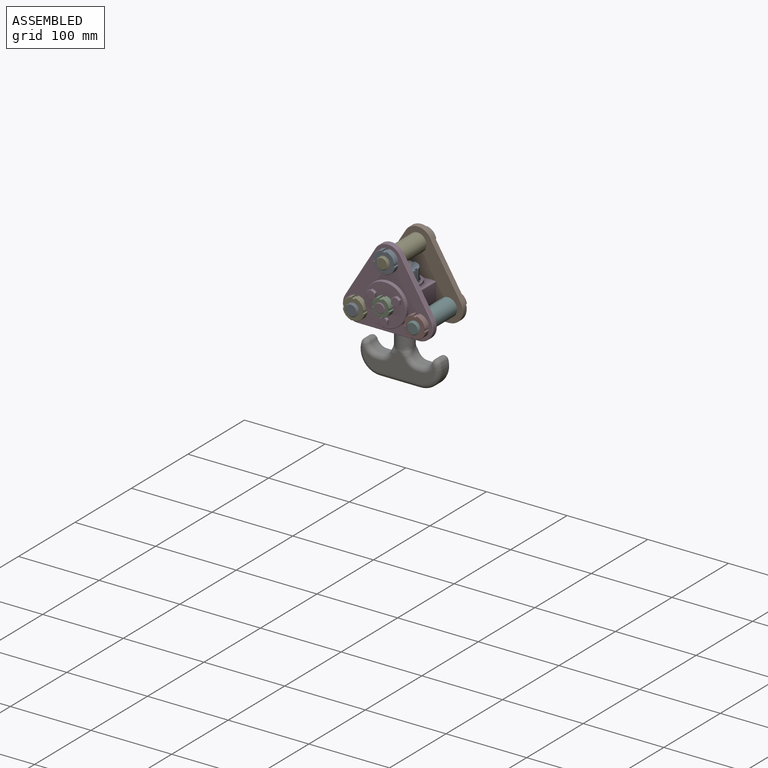
[diagram: assembled view]
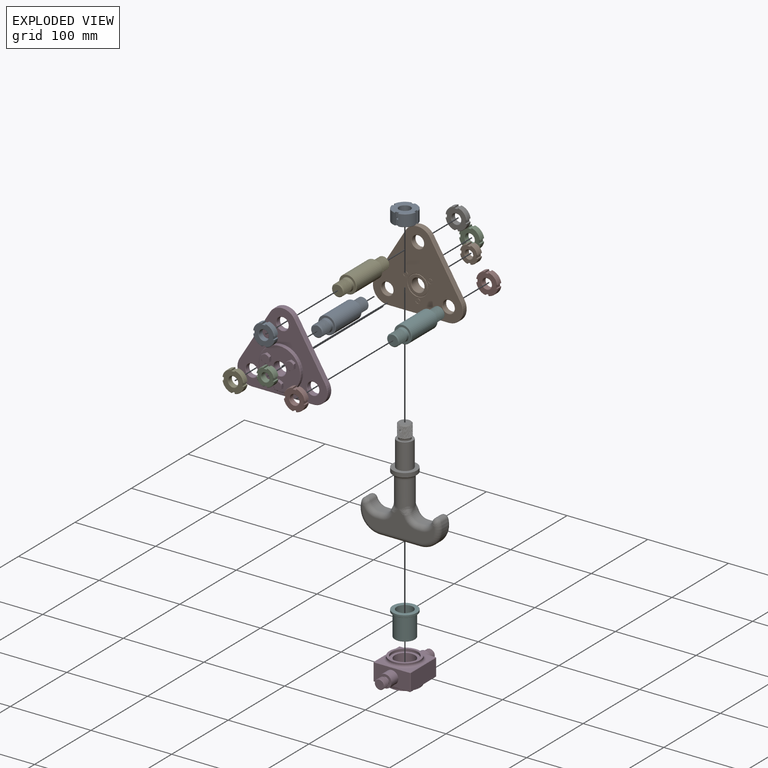
[diagram: exploded view]
GUIDED TOUR — MATED ASSEMBLY WITH SUBASSEMBLIES (Onshape document 79212cf4ececd10799b1dbc1, AutoMate assembly 79212cf4ececd10799b1dbc1_5e8a66c108269c9b4a3e70d1_1110fec8fb745d317670bb05_default)

This assembly has 25 component occurrences arranged in 17 top-level units: 15 individual components plus 2 subassemblies (S0, S1). The tour has two levels: first the top level, where each subassembly is treated as one rigid unit; then each subassembly is toured internally in its own section (nesting deeper than one subassembly level is flattened into its subassembly's section).

Components are labeled P0..P24 across the whole record; subassembly units are labeled S0..S1. A mate is a constraint between two units; its type names the relative motion it leaves free:
  FASTENED — locks the two components together rigidly (no relative motion),
  REVOLUTE — leaves rotation about the listed axis free (a hinge).
Axis/direction vectors are unit vectors and 'through' points are millimeter coordinates, both in the assembly's world frame.

TOP-LEVEL MATES (between units; each subassembly's internal mates are listed in its own section)
  1. FASTENED "Fastened 12": P5 <-> P0, direction (0.000, 0.000, 1.000) through (0.00, -30.00, 15.50) mm
  2. REVOLUTE "Revolute 1": S0 <-> P19, axis (0.000, -1.000, 0.000) through (0.00, -7.00, 0.00) mm
  3. REVOLUTE "Revolute 2": P19 <-> P5, axis (0.000, 0.000, 1.000) through (0.00, -30.00, 12.50) mm
  4. FASTENED "Fastened 8": P2 <-> S0, direction (0.000, -1.000, 0.000) through (-38.00, 0.00, -14.00) mm
  5. FASTENED "Fastened 1": P20 <-> S0, direction (0.000, 1.000, 0.000) through (0.00, -7.00, 48.39) mm
  6. FASTENED "Fastened 6": P6 <-> S0, direction (0.000, -1.000, 0.000) through (0.00, 0.00, 48.39) mm
  7. FASTENED "Fastened 3": S0 <-> P21, direction (0.000, -1.000, 0.000) through (38.00, -7.00, -14.00) mm
  8. FASTENED "Fastened 5": P20 <-> S1, direction (0.000, -1.000, 0.000) through (0.00, -53.00, 48.39) mm
  9. FASTENED "Fastened 7": P7 <-> S0, direction (0.000, -1.000, 0.000) through (38.00, 0.00, -14.00) mm
  10. FASTENED "Fastened 14": P18 <-> P19, direction (0.000, 1.000, 0.000) through (0.00, -65.00, 0.00) mm
  11. FASTENED "Fastened 11": P4 <-> S1, direction (0.000, 1.000, 0.000) through (-38.00, -60.00, -14.00) mm
  12. FASTENED "Fastened 10": P23 <-> S1, direction (0.000, 1.000, 0.000) through (38.00, -60.00, -14.00) mm
  13. FASTENED "Fastened 4": P22 <-> P5, direction (0.000, 0.000, 1.000) through (0.00, -30.00, 15.50) mm
  14. FASTENED "Fastened 13": P19 <-> P16, direction (0.000, 1.000, 0.000) through (0.00, 5.00, 0.00) mm
  15. FASTENED "Fastened 9": P10 <-> S1, direction (0.000, 1.000, 0.000) through (0.00, -60.00, 48.39) mm
  16. FASTENED "Fastened 2": P24 <-> S0, direction (0.000, 1.000, 0.000) through (-38.00, -7.00, -14.00) mm

TOP-LEVEL ASSEMBLY ORDER
  1. S0 — the base component [order heuristic]
  2. P2 — core [order heuristic]
  3. P7 — core [order heuristic]
  4. P19 — core [order heuristic]
  5. P20 — core [order heuristic]
  6. P21 — core [order heuristic]
  7. P24 — core [order heuristic]
  8. S1 — core [order heuristic]
  9. P5 — core [order heuristic]
  10. P16 — core [order heuristic]
  11. P18 — core [order heuristic]
  12. P22 — core [order heuristic]
  13. P4 — core [order heuristic]
  14. P6 [order verified]
  15. P0 — core [order heuristic]
  16. P23 — core [order heuristic]
  17. P10 — core [order heuristic]
Order-tag legend:
  [order verified] — this step's position reverses a verified removal order: the component was checked to insert without passing through the ones already placed.
  [order heuristic] — the first 16 components form the assembly's core: parts whose collision-free extraction could not be verified, listed in mate-graph order.

Of the 25 component occurrences, 5 carry the full construction recipe — the FeatureScript program that regenerates the part's solid from scratch; the rest are supplied as boundary geometry only. Each toured unit is shown spotlighted twice — assembled, then exploded with a leader line back to its socket (green = recipe-attached component, orange = geometry-only, blue = subassembly unit; the rest desaturated gray).
NOTE — this tour is split across 2 documents so each fits a 32k-token context. This is document 1: the component sections continue in the remaining 1 document, each repeating the header above.
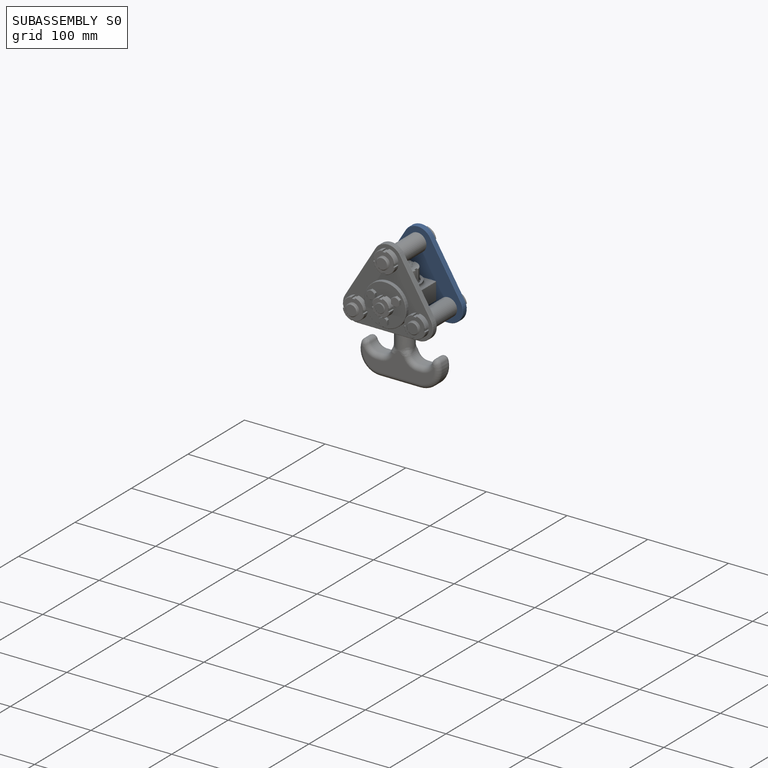
[diagram: subassembly S0 — assembled]
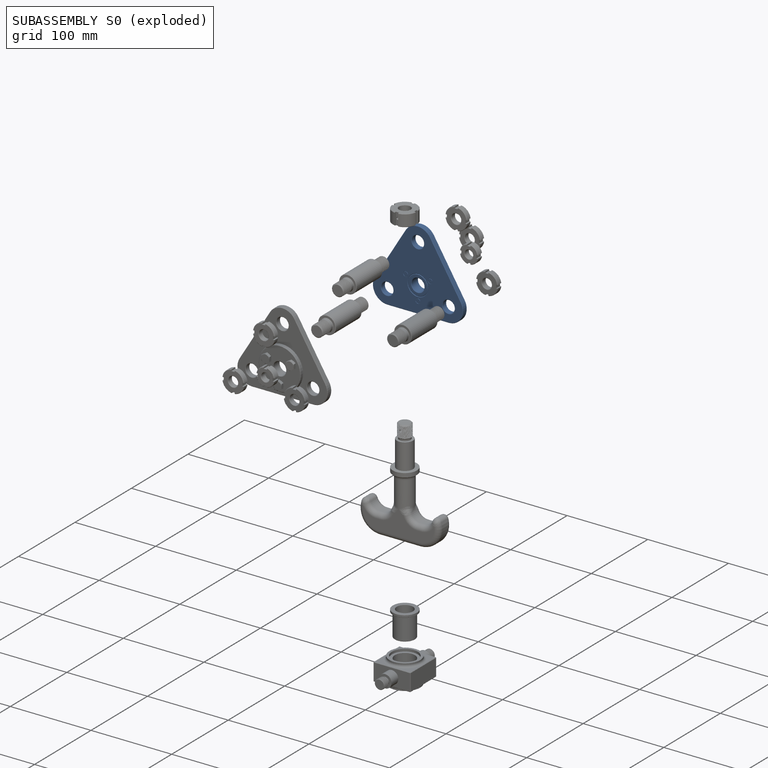
[diagram: subassembly S0 — exploded]
SUBASSEMBLY S0 — 5 components (P1, P8, P12, P15, P17), of which 2 recipe-attached; toured below.
Held by: REVOLUTE mate "Revolute 1" to P19; FASTENED mate "Fastened 8" to P2; FASTENED mate "Fastened 1" to P20; FASTENED mate "Fastened 6" to P6; FASTENED mate "Fastened 3" to P21; FASTENED mate "Fastened 7" to P7; FASTENED mate "Fastened 2" to P24.
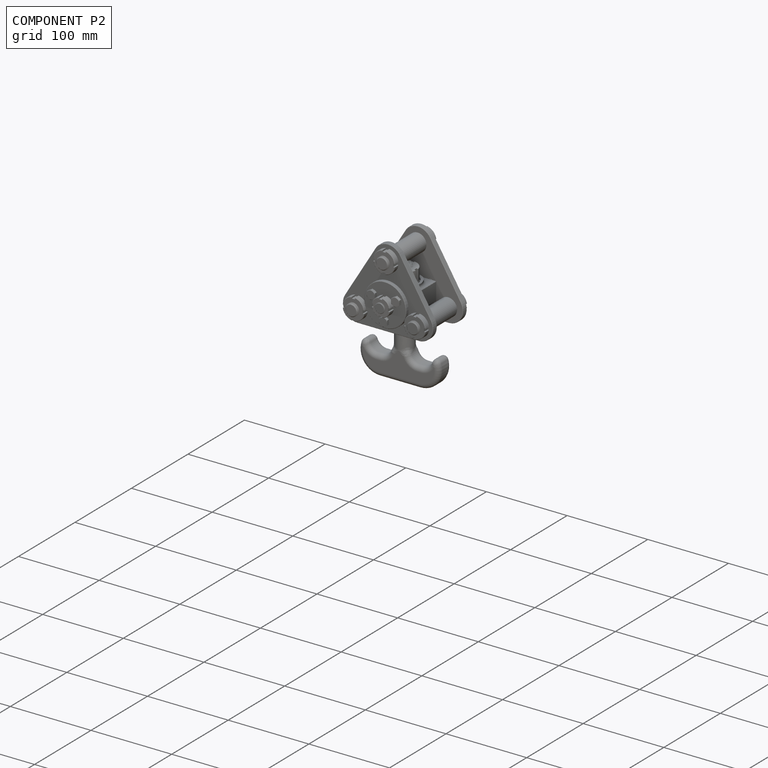
[diagram: component P2 — assembled]
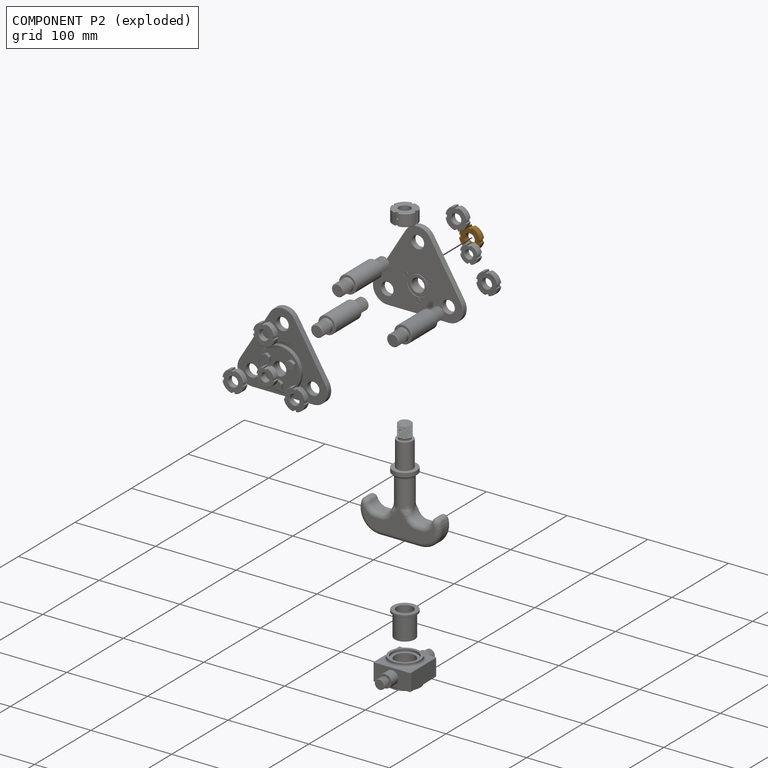
[diagram: component P2 — exploded]
COMPONENT P2 — geometry summary (no construction recipe available for this part):
  bounding box: 26.7 x 26.7 x 7.0 mm
  B-rep topology: 1 solid, 29 faces, 158 edges
  volume: 2958 mm^3 (59% of its bounding box)
  symmetry: 2-fold rotationally symmetric about the x axis; 2-fold rotationally symmetric about the y axis; 4-fold rotationally symmetric about the z axis; mirror-symmetric across its x mid-plane, y mid-plane, z mid-plane
Held by: FASTENED mate "Fastened 8" to P1.
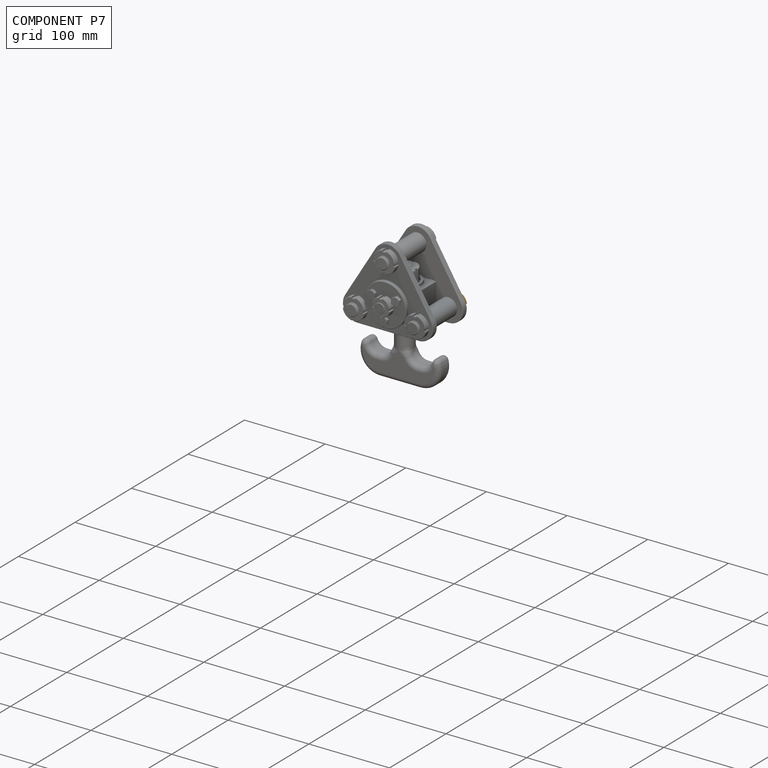
[diagram: component P7 — assembled]
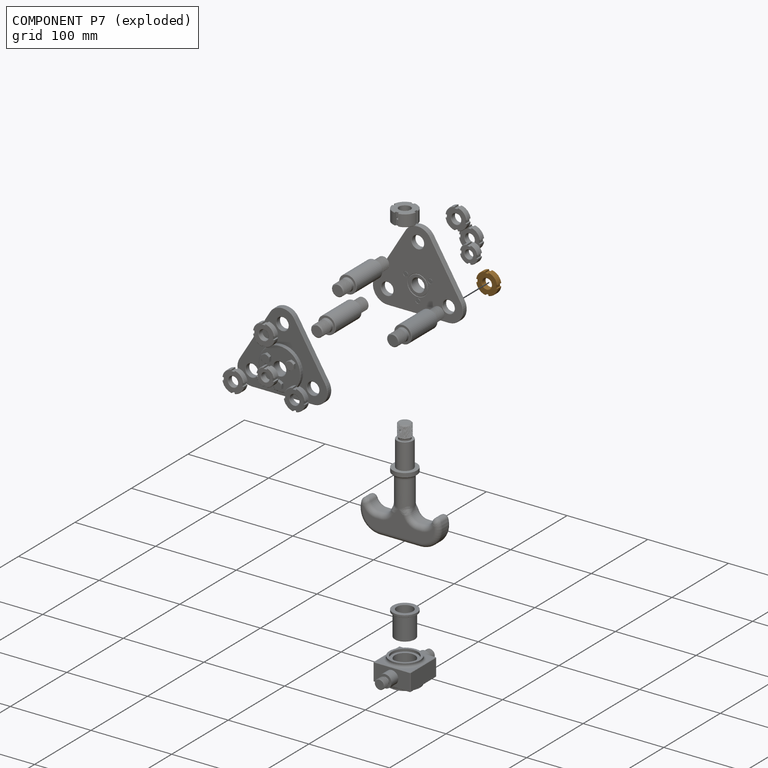
[diagram: component P7 — exploded]
COMPONENT P7 — geometry summary (no construction recipe available for this part):
  bounding box: 26.7 x 26.7 x 7.0 mm
  B-rep topology: 1 solid, 29 faces, 158 edges
  volume: 2958 mm^3 (59% of its bounding box)
  symmetry: 2-fold rotationally symmetric about the x axis; 2-fold rotationally symmetric about the y axis; 4-fold rotationally symmetric about the z axis; mirror-symmetric across its x mid-plane, y mid-plane, z mid-plane
Held by: FASTENED mate "Fastened 7" to P1.
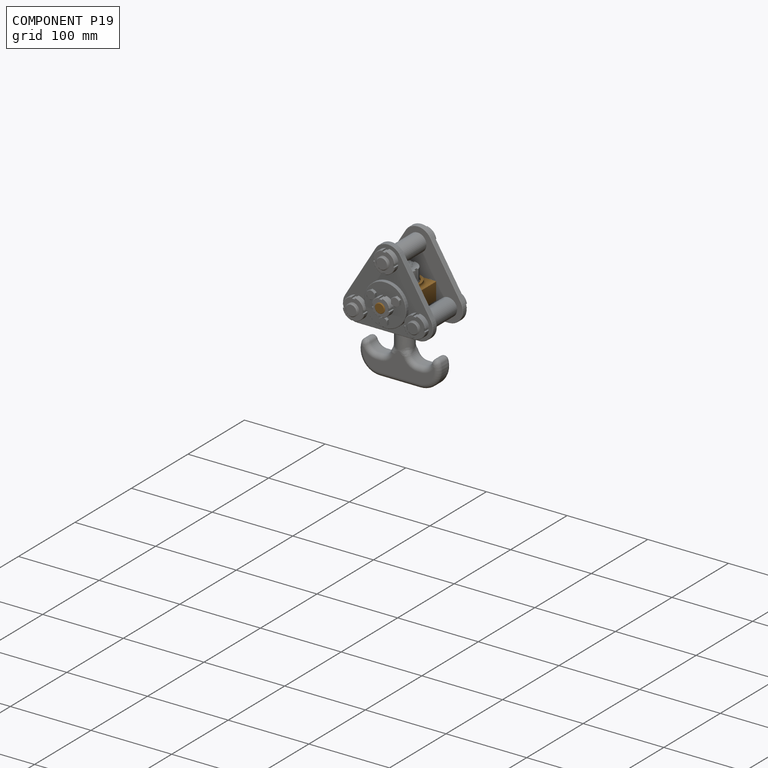
[diagram: component P19 — assembled]
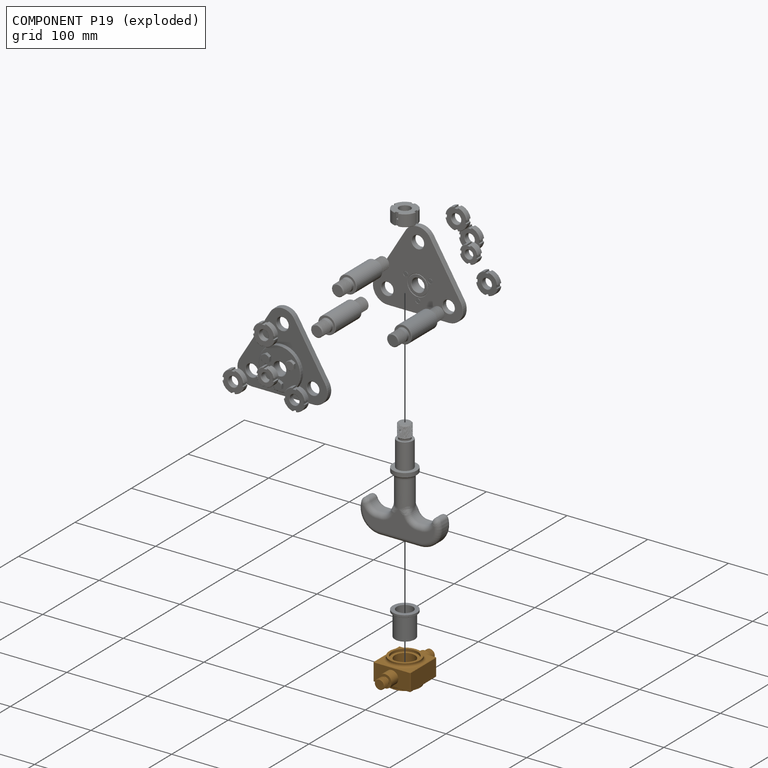
[diagram: component P19 — exploded]
COMPONENT P19 — geometry summary (no construction recipe available for this part):
  bounding box: 90.3 x 52.5 x 31.9 mm
  B-rep topology: 1 solid, 61 faces, 228 edges
  volume: 47735 mm^3 (32% of its bounding box)
  symmetry: 2-fold rotationally symmetric about the z axis; mirror-symmetric across its x mid-plane, y mid-plane
Held by: REVOLUTE mate "Revolute 1" to P1; REVOLUTE mate "Revolute 2" to P5; FASTENED mate "Fastened 14" to P18; FASTENED mate "Fastened 13" to P16.
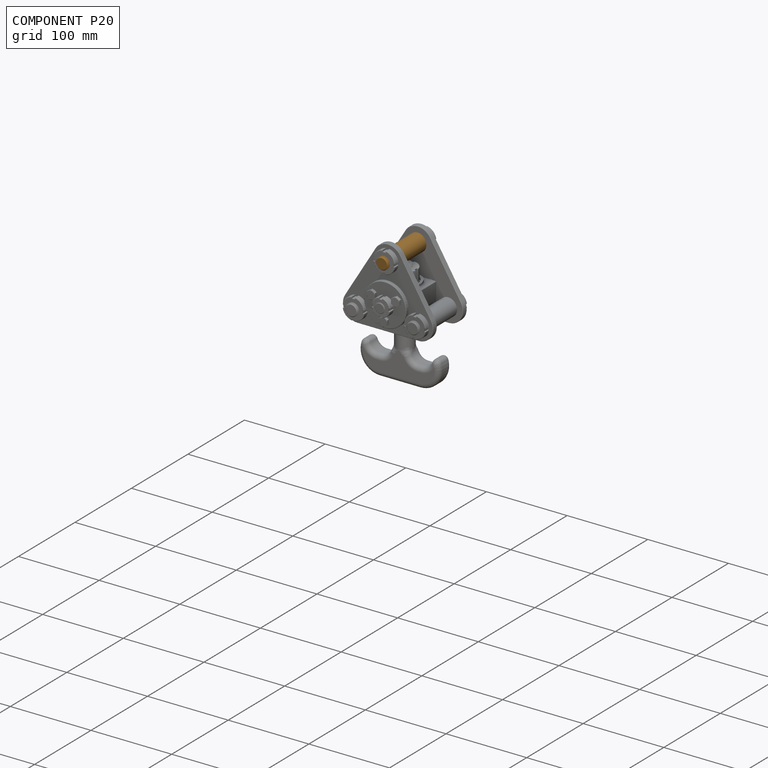
[diagram: component P20 — assembled]
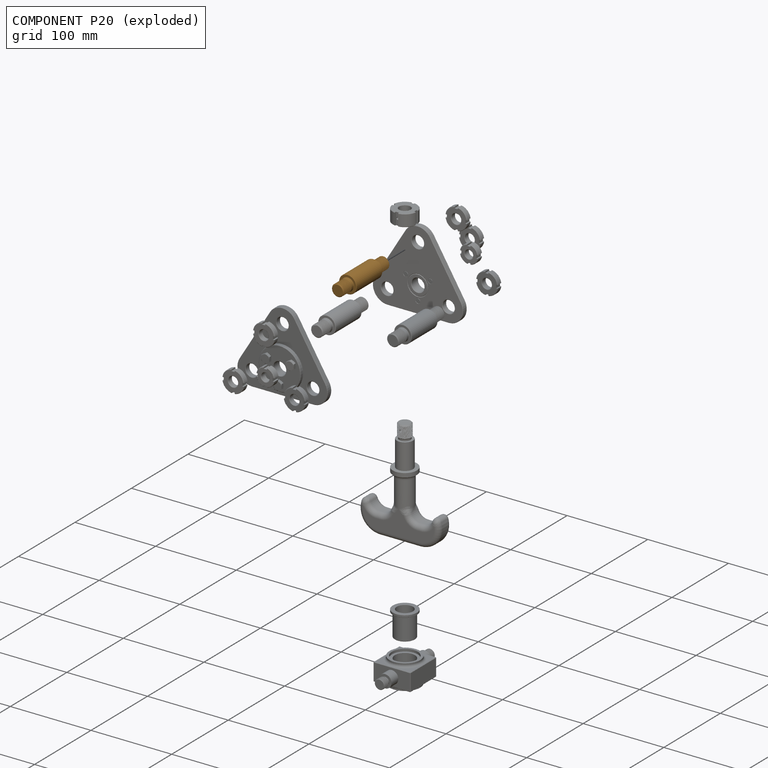
[diagram: component P20 — exploded]
COMPONENT P20 — geometry summary (no construction recipe available for this part):
  bounding box: 82.3 x 22.3 x 22.3 mm
  B-rep topology: 1 solid, 55 faces, 274 edges
  volume: 23421 mm^3 (57% of its bounding box)
  symmetry: 2-fold rotationally symmetric about the x axis; revolution-symmetric about the y axis through its bounding-box center; 2-fold rotationally symmetric about the z axis; mirror-symmetric across its x mid-plane, y mid-plane, z mid-plane
Held by: FASTENED mate "Fastened 1" to P1; FASTENED mate "Fastened 5" to P3.
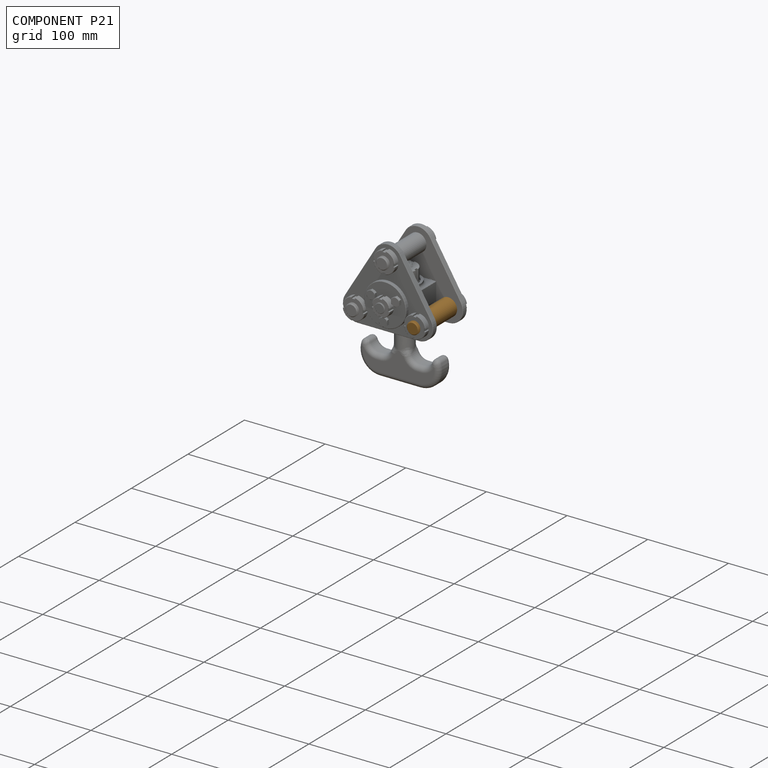
[diagram: component P21 — assembled]
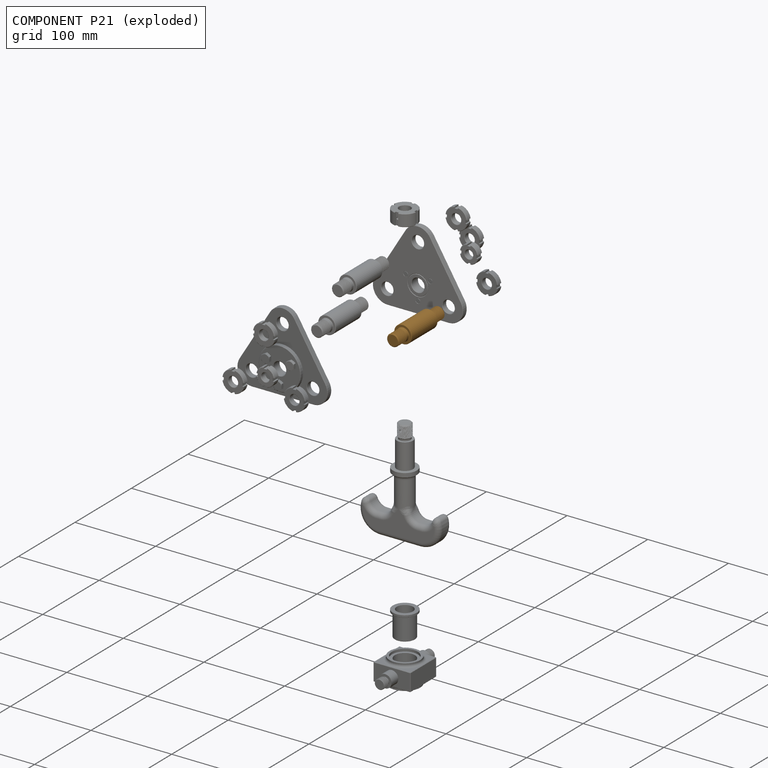
[diagram: component P21 — exploded]
COMPONENT P21 — geometry summary (no construction recipe available for this part):
  bounding box: 82.3 x 22.3 x 22.3 mm
  B-rep topology: 1 solid, 55 faces, 274 edges
  volume: 23421 mm^3 (57% of its bounding box)
  symmetry: 2-fold rotationally symmetric about the x axis; revolution-symmetric about the y axis through its bounding-box center; 2-fold rotationally symmetric about the z axis; mirror-symmetric across its x mid-plane, y mid-plane, z mid-plane
Held by: FASTENED mate "Fastened 3" to P1.
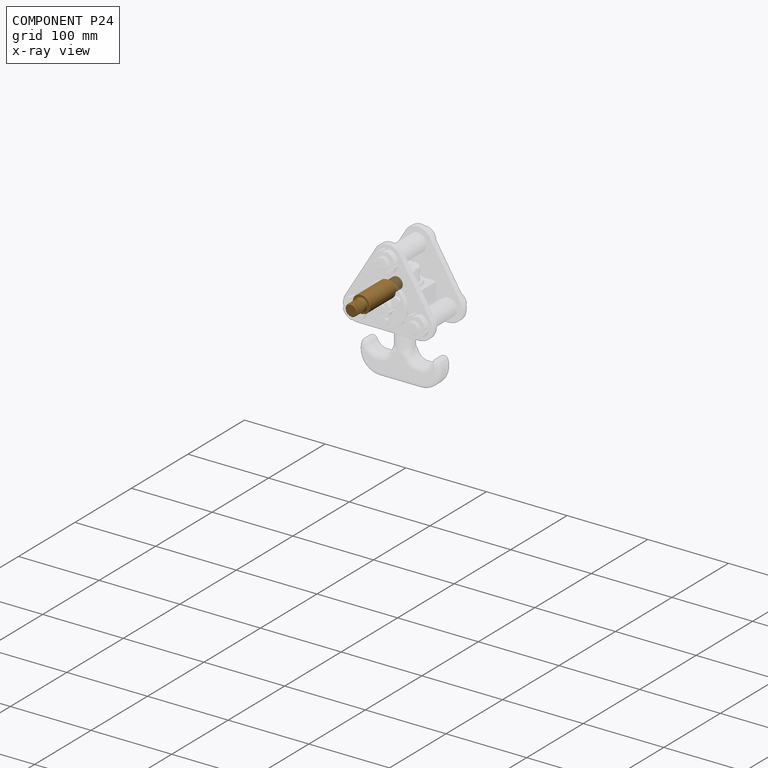
[diagram: component P24 — x-ray view]
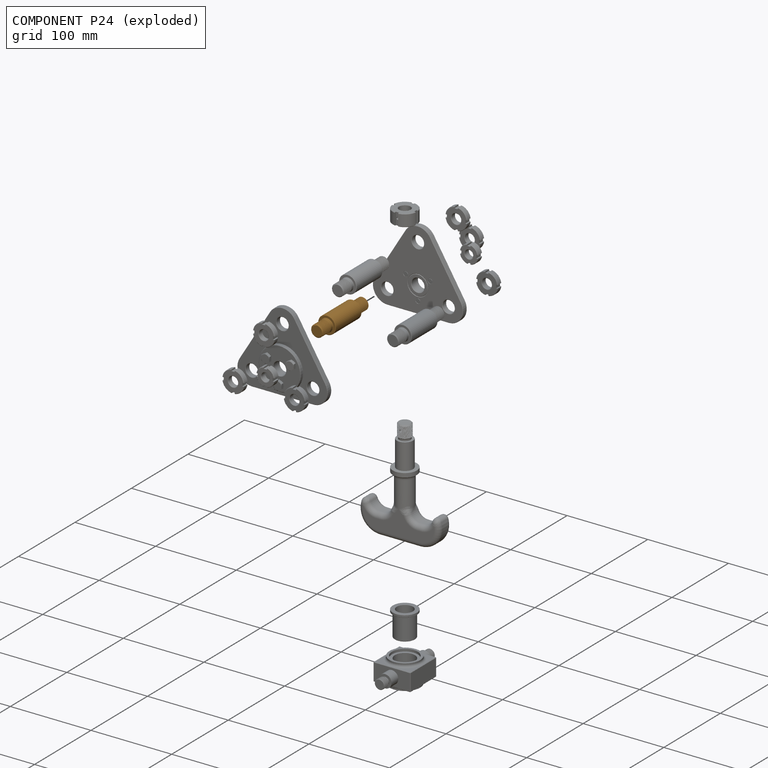
[diagram: component P24 — exploded]
COMPONENT P24 — geometry summary (no construction recipe available for this part):
  bounding box: 82.3 x 22.3 x 22.3 mm
  B-rep topology: 1 solid, 55 faces, 274 edges
  volume: 23421 mm^3 (57% of its bounding box)
  symmetry: 2-fold rotationally symmetric about the x axis; revolution-symmetric about the y axis through its bounding-box center; 2-fold rotationally symmetric about the z axis; mirror-symmetric across its x mid-plane, y mid-plane, z mid-plane
Held by: FASTENED mate "Fastened 2" to P1.
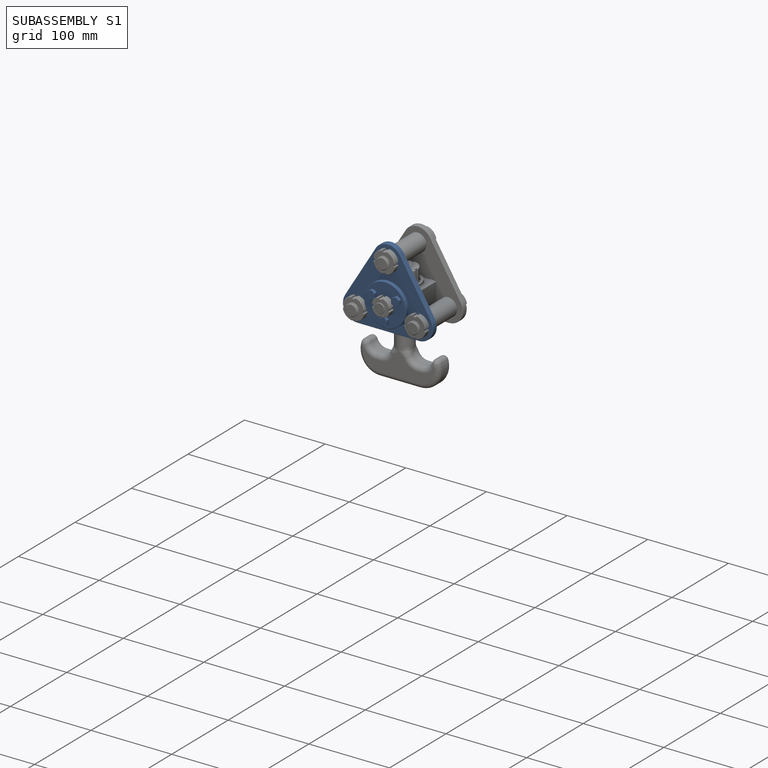
[diagram: subassembly S1 — assembled]
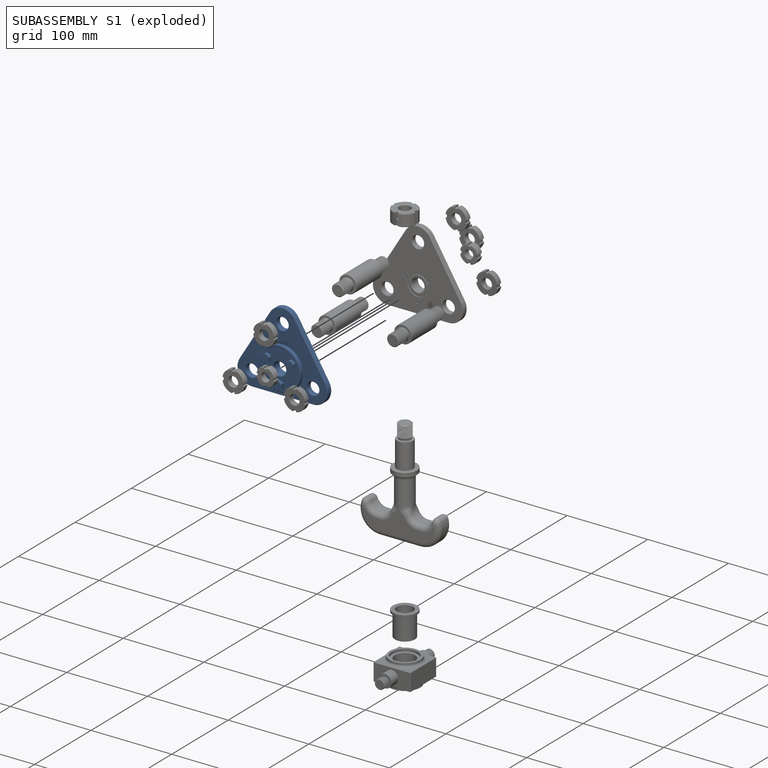
[diagram: subassembly S1 — exploded]
SUBASSEMBLY S1 — 5 components (P3, P9, P11, P13, P14), of which 2 recipe-attached; toured below.
Held by: FASTENED mate "Fastened 5" to P20; FASTENED mate "Fastened 11" to P4; FASTENED mate "Fastened 10" to P23; FASTENED mate "Fastened 9" to P10.
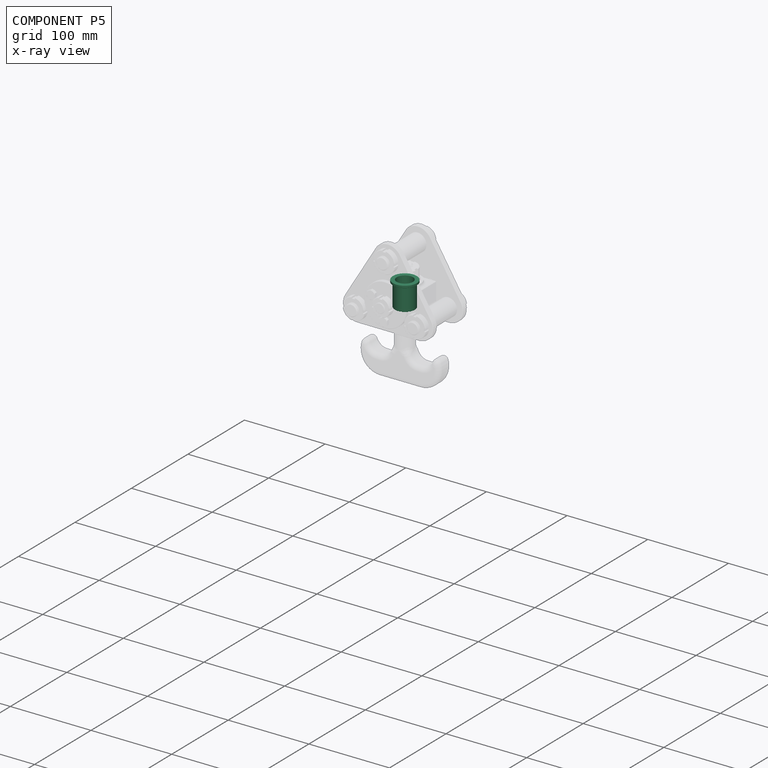
[diagram: component P5 — x-ray view]
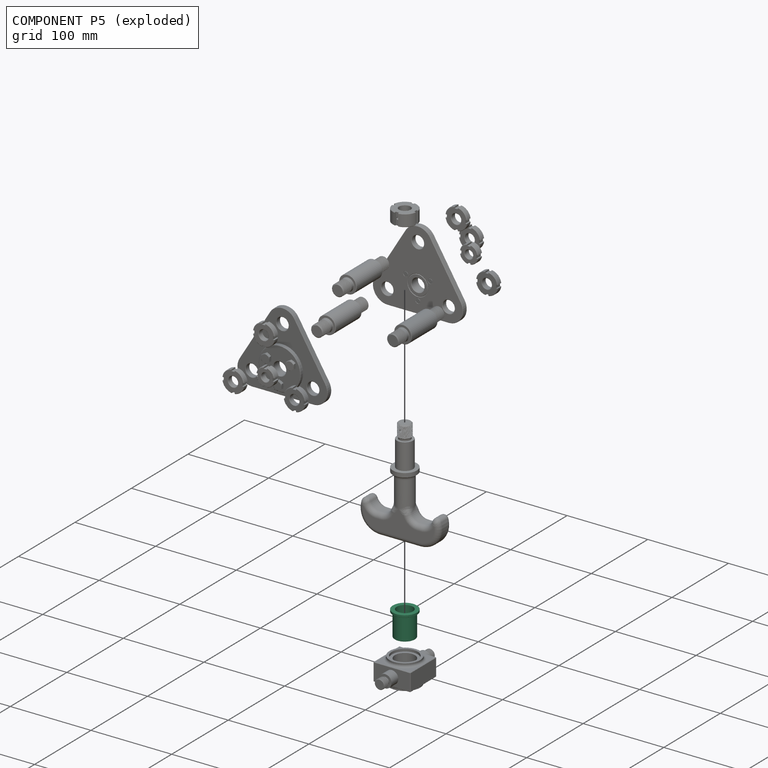
[diagram: component P5 — exploded]
COMPONENT P5 — recipe-attached (CADFS 00941910, mesh-verified: the recipe's output STEP matches this component's geometry to below the mesh-comparison resolution (tessellation chordal tolerance ~0.0788 mm)).
Held by: FASTENED mate "Fastened 12" to P0; REVOLUTE mate "Revolute 2" to P19; FASTENED mate "Fastened 4" to P22.
Construction recipe (FeatureScript — the CAD program that rebuilds this solid; sketch coordinates are in the units given by the * unit suffixes, e.g. mm):

FeatureScript 1977;
import(path : "onshape/std/geometry.fs", version : "1977.0");
import(path : "onshape/std/common.fs", version : "1977.0");
const mm = millimeter;
const VERTEX = EntityType.VERTEX;
const EDGE = EntityType.EDGE;
const FACE = EntityType.FACE;
const BODY = EntityType.BODY;
function v(x, y){return vector(x, y);}
function OD(order){return orderDisambiguation(order);}
function OSD(set){return originalSetDisambiguation(set);}
function TD(topology){return topologyDisambiguation(topology);}
function TDD(query){return trueDependencyDisambiguation(query);}
function sQuery(a, b, c) {return sketchEntityQuery(a, b, c);}

annotation { "Feature Type Name" : "Feature", "Feature Type Description" : "" }
export const myFeature = defineFeature(function(context is Context, id is Id, definition is map)
    precondition{}
    {
        {
            var Q0;
            Q0=qCreatedBy(makeId("Front.planeOp"),FACE);
            var sketch = newSketch(context, id + "F0", { "sketchPlane" : qUnion([Q0])});
            skCircle(sketch, "E0", {"center": v(0, 0) * mm, "radius": 15 * mm});
            skCircle(sketch, "E1", {"center": v(0, 0) * mm, "radius": 12.5 * mm});
            skCircle(sketch, "E2", {"center": v(0, 0) * mm, "radius": 10 * mm});
            skSolve(sketch);
        }
        {
            var Q0;
            Q0=makeQuery(id+"F0.imprint","IMPRINT",FACE,{"disambiguationData":[TD([[makeQuery(id+"F0.imprint","IMPRINT",EDGE,{"derivedFrom":sQuery(id+"F0.wireOp",EDGE,"E0")}),1.0]])]});
            extrude(context, id + "F1", {"entities" : qUnion([Q0]), "depth" : 3 * mm, "offsetDistance" : 25 * mm});
        }
        {
            var Q0;
            Q0=makeQuery(id+"F0.imprint","IMPRINT",FACE,{"disambiguationData":[TD([[makeQuery(id+"F0.imprint","IMPRINT",EDGE,{"derivedFrom":sQuery(id+"F0.wireOp",EDGE,"E1")}),1.0]])]});
            extrude(context, id + "F2", {"entities" : qUnion([Q0]), "operationType" : NewBodyOperationType.ADD, "depth" : 31 * mm, "offsetDistance" : 25 * mm});
        }
        {
            var Q0;
            Q0=makeQuery(id+"F2.opExtrude","CAP_FACE",FACE,{"disambiguationData":[OSD([sQuery(id+"F0.wireOp",EDGE,"E1"),sQuery(id+"F0.wireOp",EDGE,"E2")])],"isStart":false});
            var Q1;
            {var subQ0=sQuery(id+"F0.wireOp",EDGE,"E1");Q1=makeQuery(id+"F2.boolean.opBoolean","MERGE",FACE,{"derivedFrom":[makeQuery(id+"F1.opExtrude","CAP_FACE",FACE,{"disambiguationData":[OSD([sQuery(id+"F0.wireOp",EDGE,"E0"),subQ0])],"isStart":true}),makeQuery(id+"F2.opExtrude","CAP_FACE",FACE,{"disambiguationData":[OSD([subQ0,sQuery(id+"F0.wireOp",EDGE,"E2")])],"isStart":true})]});}
            var Q2;
            Q2=makeQuery(id+"F1.opExtrude","CAP_EDGE",EDGE,{"disambiguationData":[OSD([sQuery(id+"F0.wireOp",EDGE,"E0")])],"isStart":false});
            chamfer(context, id + "F3", {"entities" : qUnion([Q0, Q1, Q2]), "width" : 0.25 * mm, "tangentPropagation" : true});
        }
    });
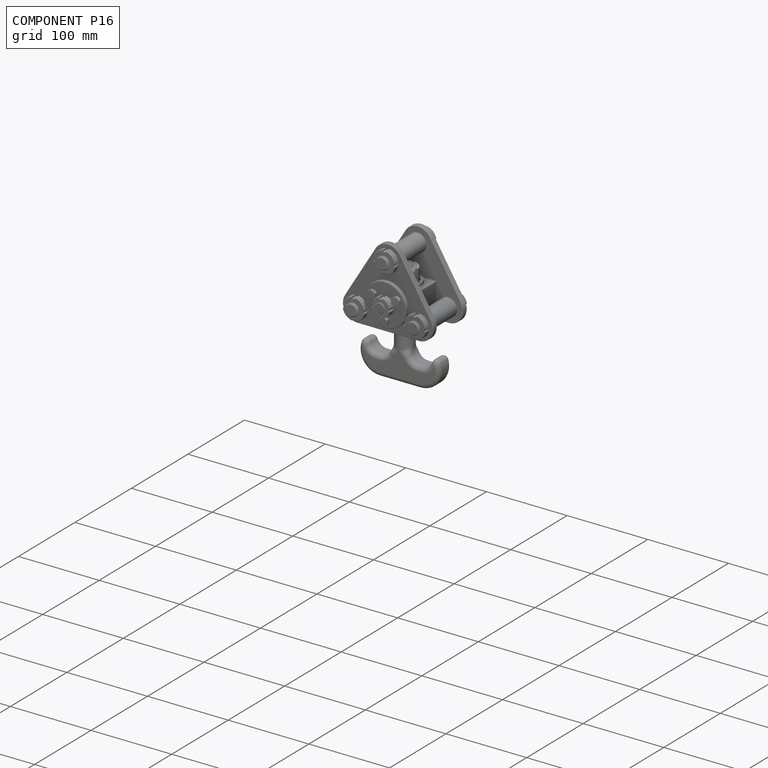
[diagram: component P16 — assembled]
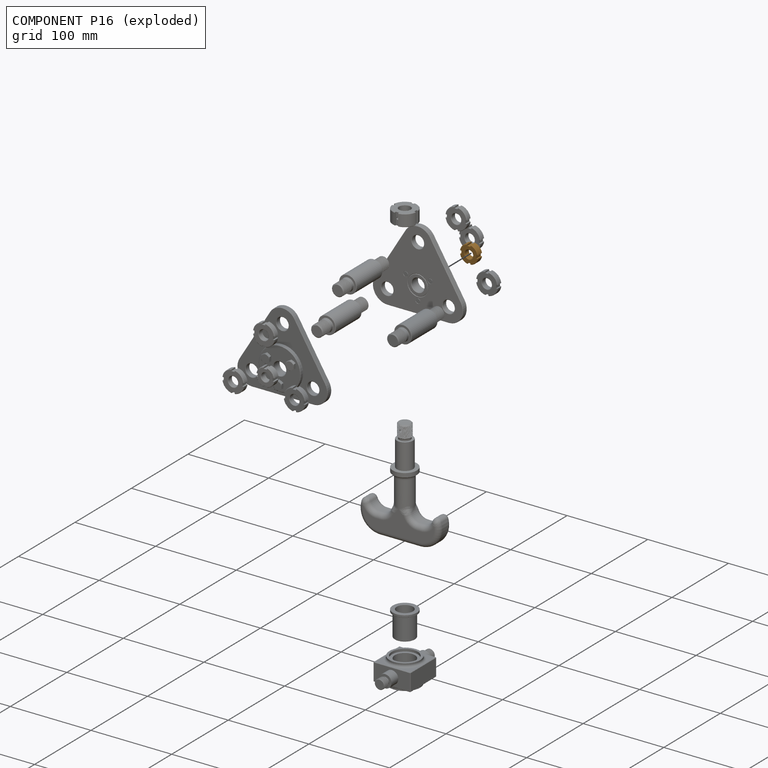
[diagram: component P16 — exploded]
COMPONENT P16 — geometry summary (no construction recipe available for this part):
  bounding box: 22.1 x 22.1 x 8.0 mm
  B-rep topology: 1 solid, 29 faces, 158 edges
  volume: 2244 mm^3 (57% of its bounding box)
  symmetry: 2-fold rotationally symmetric about the x axis; 2-fold rotationally symmetric about the y axis; 4-fold rotationally symmetric about the z axis; mirror-symmetric across its x mid-plane, y mid-plane, z mid-plane
Held by: FASTENED mate "Fastened 13" to P19.
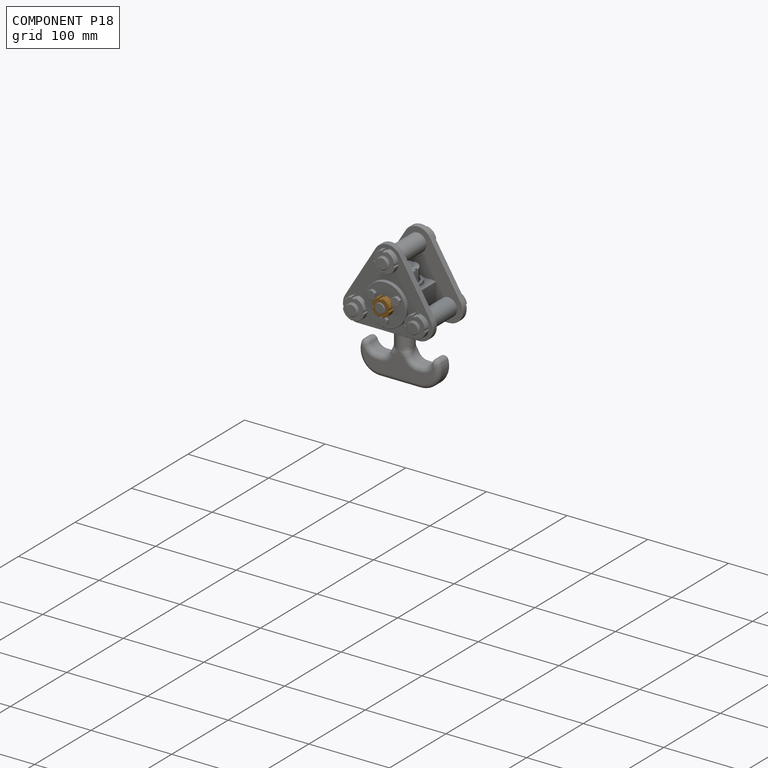
[diagram: component P18 — assembled]
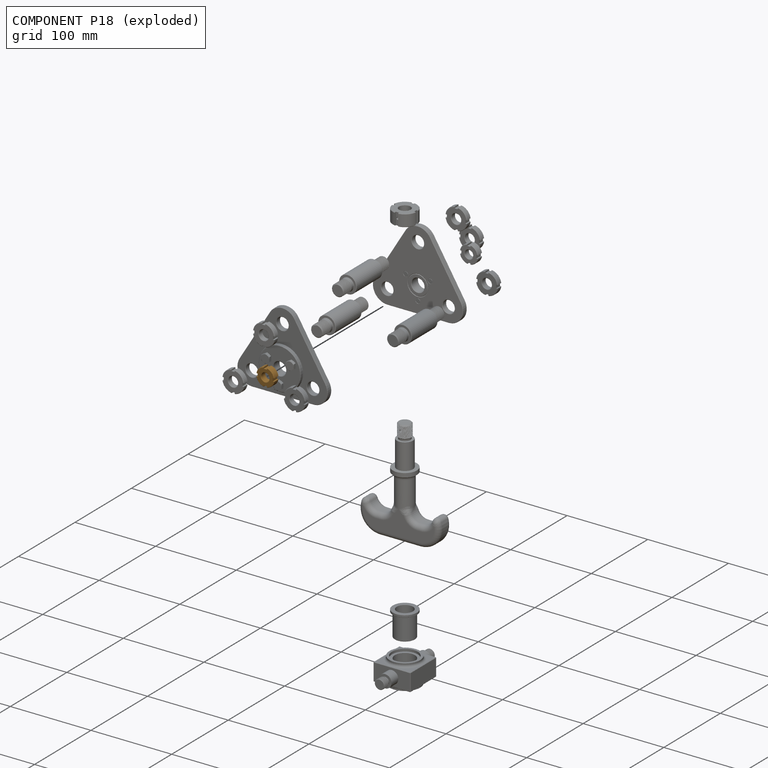
[diagram: component P18 — exploded]
COMPONENT P18 — geometry summary (no construction recipe available for this part):
  bounding box: 22.1 x 22.1 x 8.0 mm
  B-rep topology: 1 solid, 29 faces, 158 edges
  volume: 2244 mm^3 (57% of its bounding box)
  symmetry: 2-fold rotationally symmetric about the x axis; 2-fold rotationally symmetric about the y axis; 4-fold rotationally symmetric about the z axis; mirror-symmetric across its x mid-plane, y mid-plane, z mid-plane
Held by: FASTENED mate "Fastened 14" to P19.
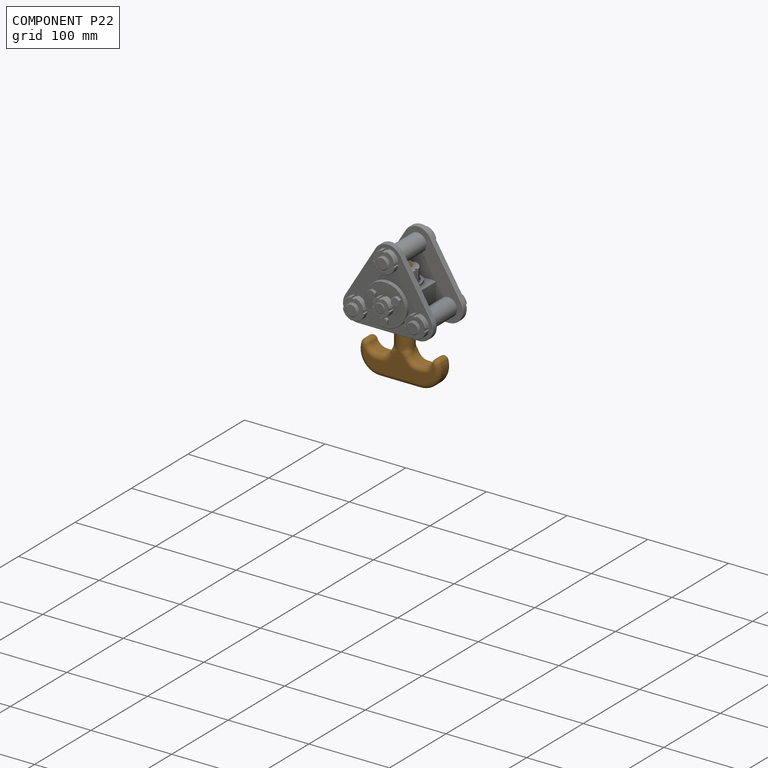
[diagram: component P22 — assembled]
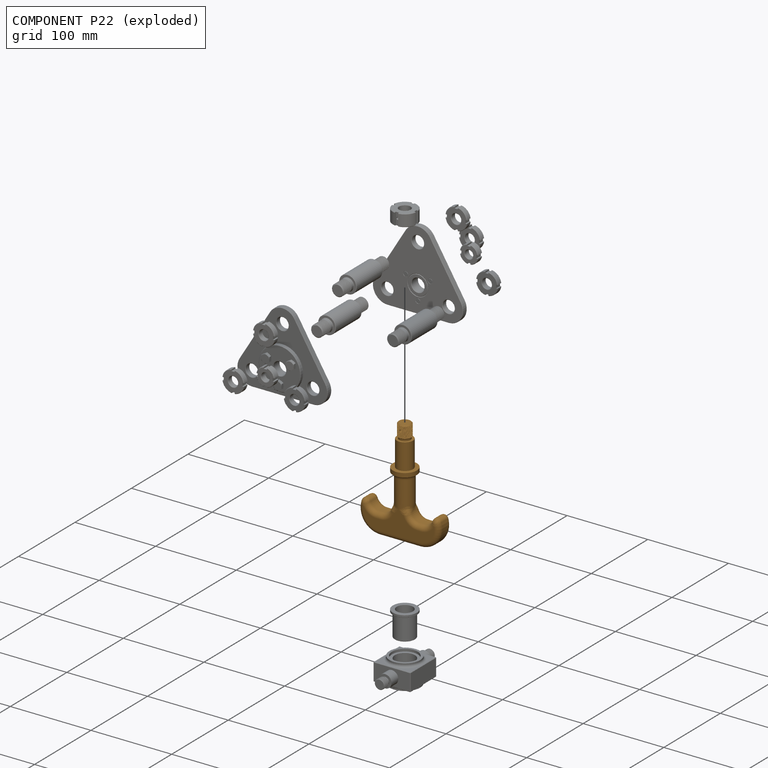
[diagram: component P22 — exploded]
COMPONENT P22 — geometry summary (no construction recipe available for this part):
  bounding box: 132.4 x 104.4 x 34.9 mm
  B-rep topology: 1 solid, 98 faces, 482 edges
  volume: 89659 mm^3 (19% of its bounding box)
  symmetry: 2-fold rotationally symmetric about the z axis; mirror-symmetric across its x mid-plane, y mid-plane
Held by: FASTENED mate "Fastened 4" to P5.
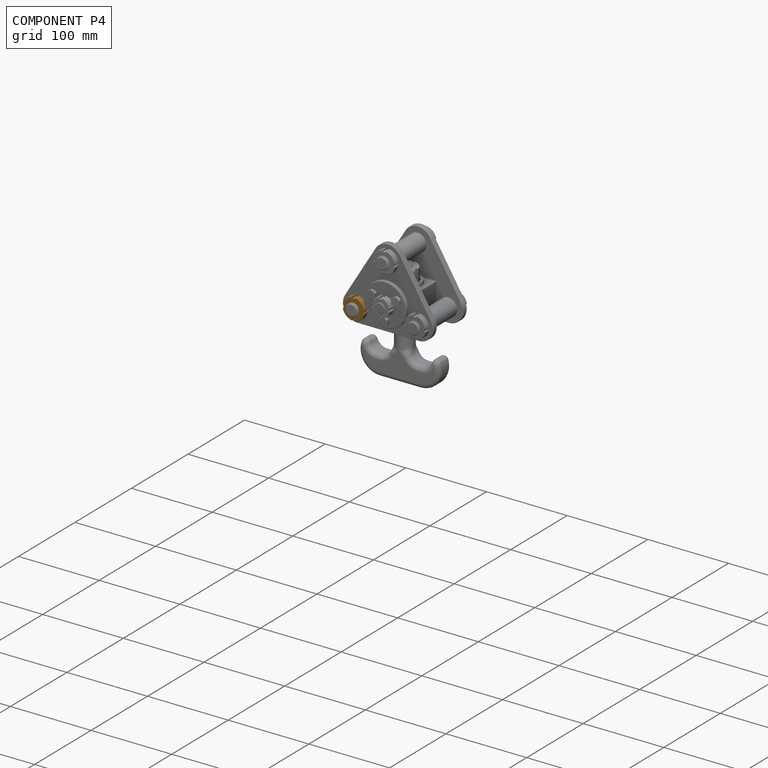
[diagram: component P4 — assembled]
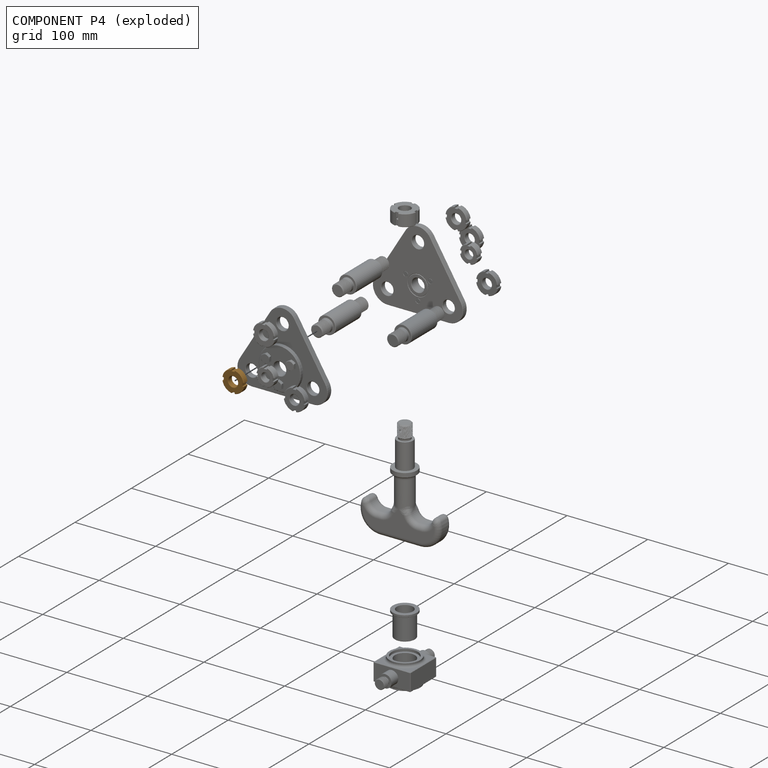
[diagram: component P4 — exploded]
COMPONENT P4 — geometry summary (no construction recipe available for this part):
  bounding box: 26.7 x 26.7 x 7.0 mm
  B-rep topology: 1 solid, 29 faces, 158 edges
  volume: 2958 mm^3 (59% of its bounding box)
  symmetry: 2-fold rotationally symmetric about the x axis; 2-fold rotationally symmetric about the y axis; 4-fold rotationally symmetric about the z axis; mirror-symmetric across its x mid-plane, y mid-plane, z mid-plane
Held by: FASTENED mate "Fastened 11" to P3.
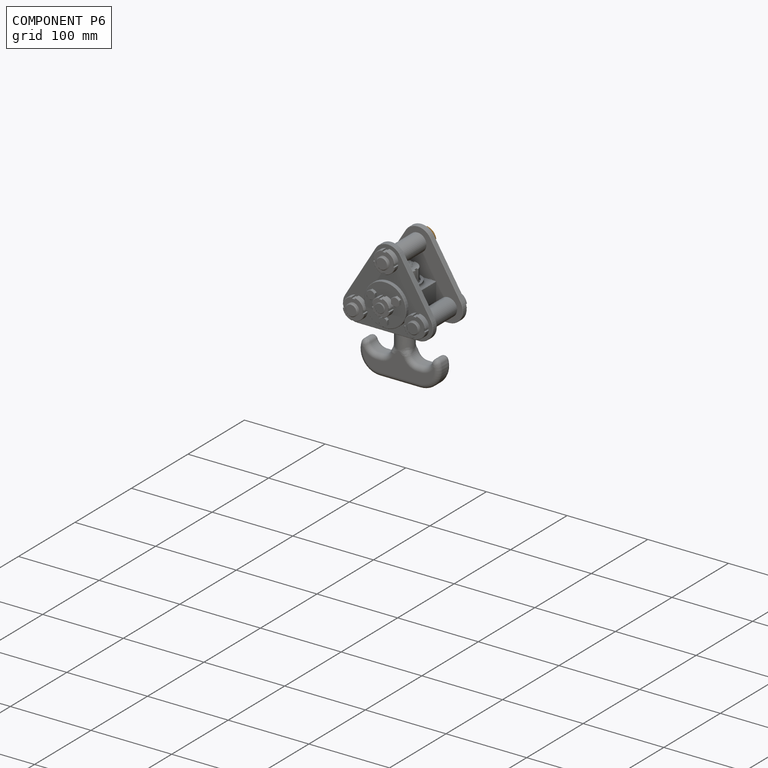
[diagram: component P6 — assembled]
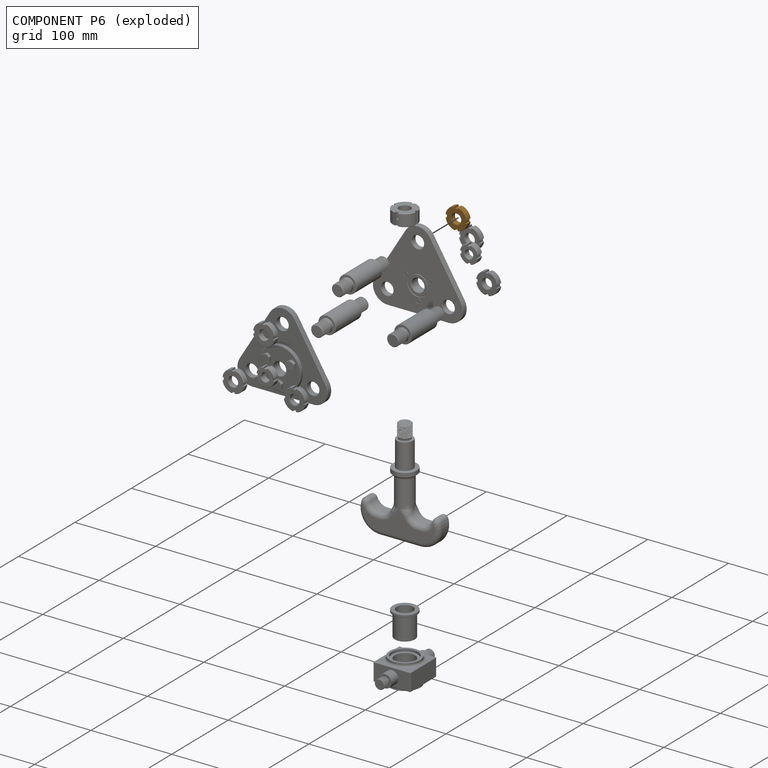
[diagram: component P6 — exploded]
COMPONENT P6 — geometry summary (no construction recipe available for this part):
  bounding box: 26.7 x 26.7 x 7.0 mm
  B-rep topology: 1 solid, 29 faces, 158 edges
  volume: 2958 mm^3 (59% of its bounding box)
  symmetry: 2-fold rotationally symmetric about the x axis; 2-fold rotationally symmetric about the y axis; 4-fold rotationally symmetric about the z axis; mirror-symmetric across its x mid-plane, y mid-plane, z mid-plane
Held by: FASTENED mate "Fastened 6" to P1.
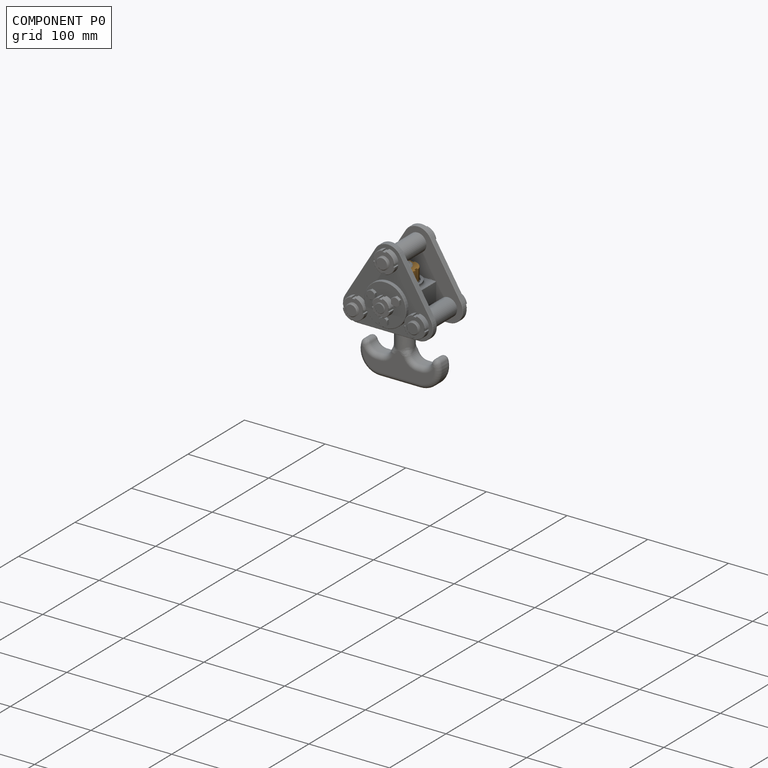
[diagram: component P0 — assembled]
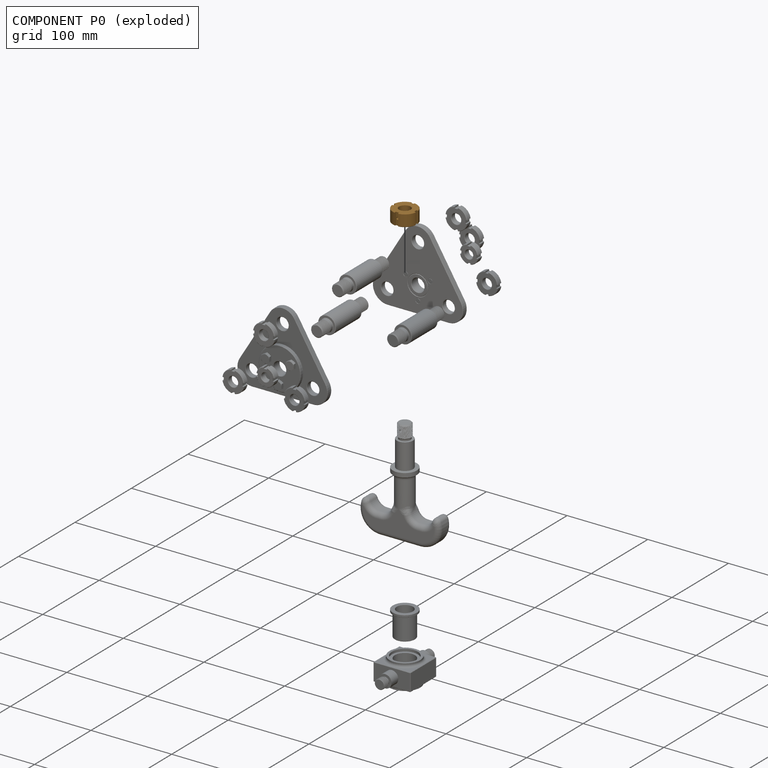
[diagram: component P0 — exploded]
COMPONENT P0 — geometry summary (no construction recipe available for this part):
  bounding box: 29.7 x 29.7 x 15.0 mm
  B-rep topology: 1 solid, 31 faces, 172 edges
  volume: 7708 mm^3 (58% of its bounding box)
  symmetry: 2-fold rotationally symmetric about the z axis; mirror-symmetric across its x mid-plane, y mid-plane
Held by: FASTENED mate "Fastened 12" to P5.
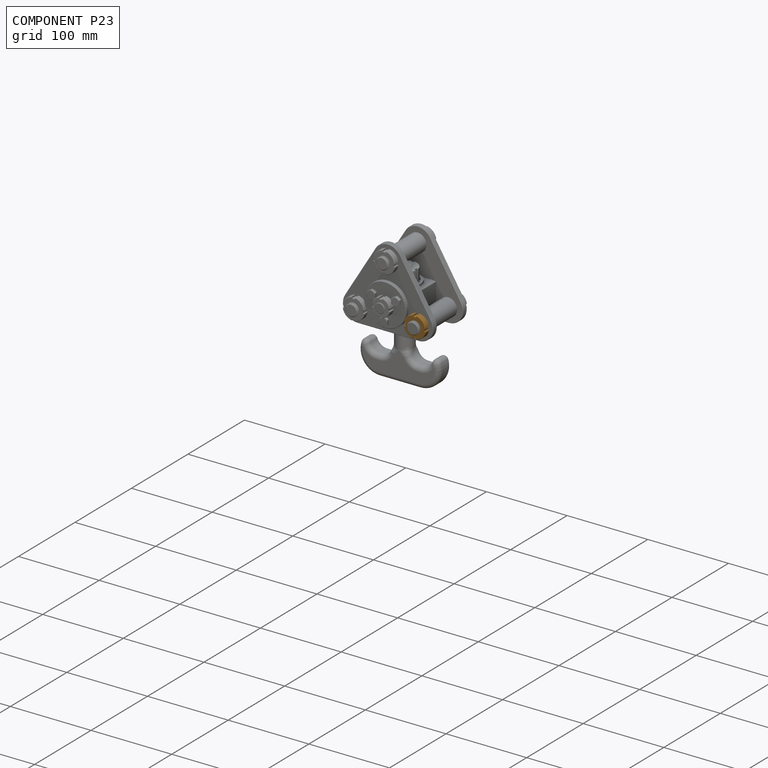
[diagram: component P23 — assembled]
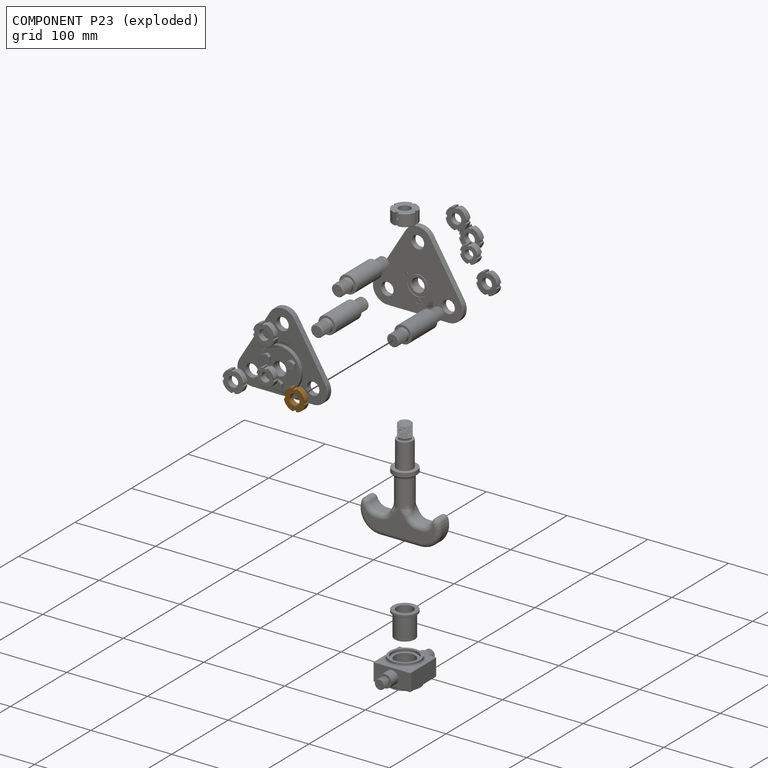
[diagram: component P23 — exploded]
COMPONENT P23 — geometry summary (no construction recipe available for this part):
  bounding box: 26.7 x 26.7 x 7.0 mm
  B-rep topology: 1 solid, 29 faces, 158 edges
  volume: 2958 mm^3 (59% of its bounding box)
  symmetry: 2-fold rotationally symmetric about the x axis; 2-fold rotationally symmetric about the y axis; 4-fold rotationally symmetric about the z axis; mirror-symmetric across its x mid-plane, y mid-plane, z mid-plane
Held by: FASTENED mate "Fastened 10" to P3.
